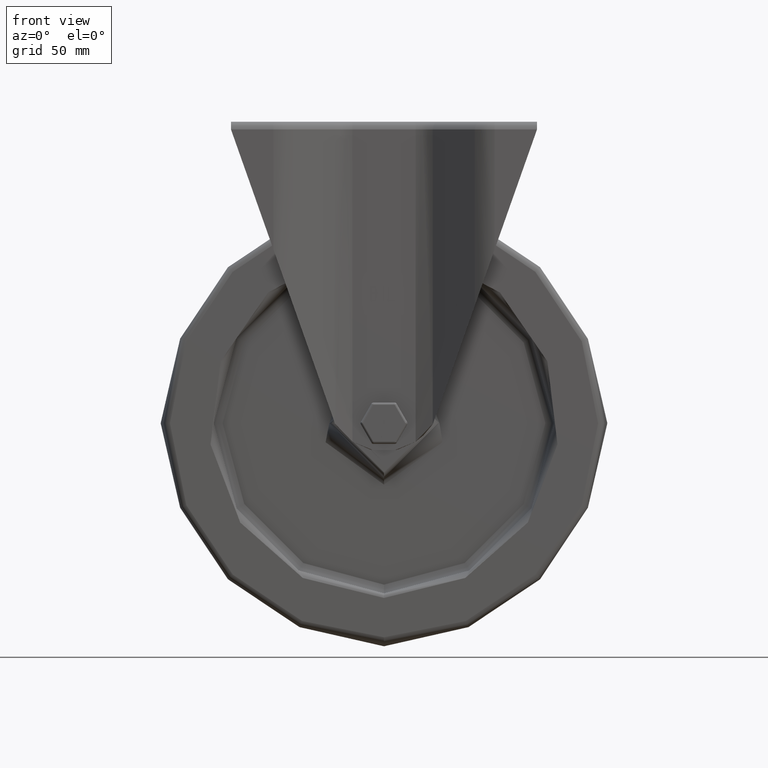
[diagram: clean part render]
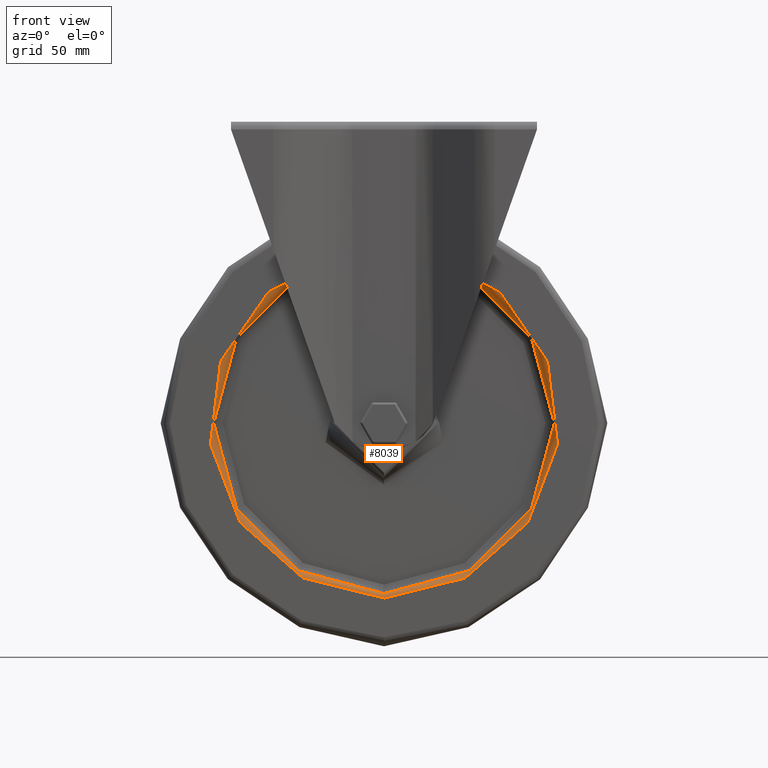
[diagram: same view with one face highlighted and labeled with its STEP entity id]
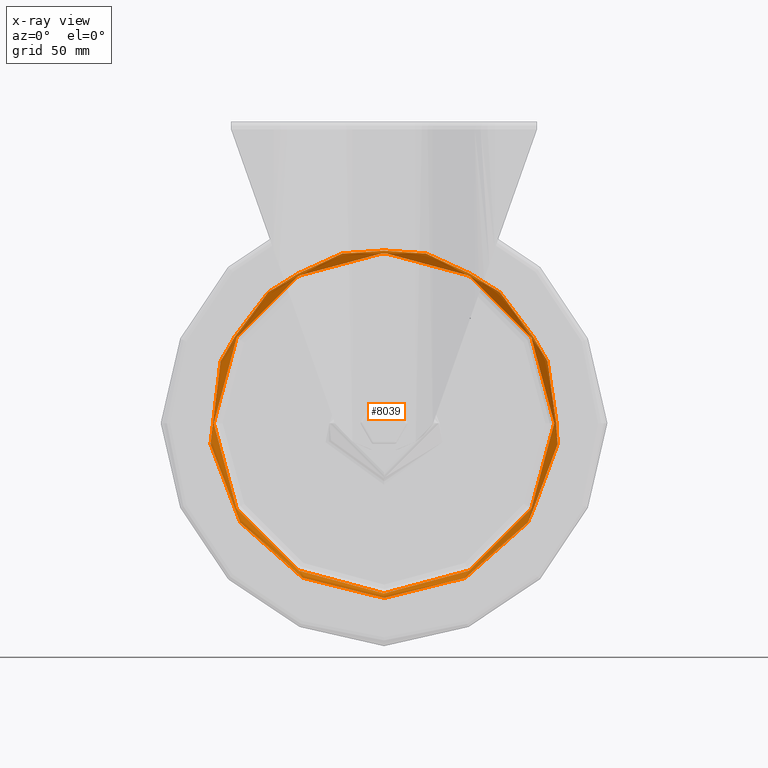
[diagram: x-ray of the same camera — body ghosted, the highlighted face saturated]
A machine part, front view. The second image highlights one B-rep face of the part: STEP entity #8039.
The next image is the same camera in x-ray: the body ghosted, the highlighted face saturated — about 0% of this face is hidden behind the body in this view.
In plain terms, the highlighted toroidal blend (fillet) surface has major radius 78.25 mm and minor (blend) radius 2 mm.
Its self-contained STEP definition (entity closure, byte-faithful):
#519=TOROIDAL_SURFACE('',#8798,78.25,1.99999999999995);
#904=FACE_OUTER_BOUND('',#1402,.T.);
#1402=EDGE_LOOP('',(#6106,#6107,#6108,#6109));
#3131=CIRCLE('',#8799,78.25);
#3132=CIRCLE('',#8800,1.99999999999995);
#3133=CIRCLE('',#8801,76.25);
#3611=VERTEX_POINT('',#12855);
#3612=VERTEX_POINT('',#12857);
#4509=EDGE_CURVE('',#3611,#3611,#3131,.T.);
#4510=EDGE_CURVE('',#3611,#3612,#3132,.T.);
#4511=EDGE_CURVE('',#3612,#3612,#3133,.T.);
#6106=ORIENTED_EDGE('',*,*,#4509,.F.);
#6107=ORIENTED_EDGE('',*,*,#4510,.T.);
#6108=ORIENTED_EDGE('',*,*,#4511,.T.);
#6109=ORIENTED_EDGE('',*,*,#4510,.F.);
#8039=ADVANCED_FACE('',(#904),#519,.T.);
#8798=AXIS2_PLACEMENT_3D('',#12854,#10182,#10183);
#8799=AXIS2_PLACEMENT_3D('',#12856,#10184,#10185);
#8800=AXIS2_PLACEMENT_3D('',#12858,#10186,#10187);
#8801=AXIS2_PLACEMENT_3D('',#12859,#10188,#10189);
#10182=DIRECTION('center_axis',(0.,1.,0.));
#10183=DIRECTION('ref_axis',(0.,0.,1.));
#10184=DIRECTION('center_axis',(0.,1.,0.));
#10185=DIRECTION('ref_axis',(0.,0.,1.));
#10186=DIRECTION('center_axis',(-1.,0.,1.22464679914735E-16));
#10187=DIRECTION('ref_axis',(-1.22464679914735E-16,0.,-1.));
#10188=DIRECTION('center_axis',(0.,1.,0.));
#10189=DIRECTION('ref_axis',(0.,0.,1.));
#12854=CARTESIAN_POINT('Origin',(0.,-22.0000000000001,0.));
#12855=CARTESIAN_POINT('',(9.58286120332803E-15,-24.,-78.25));
#12856=CARTESIAN_POINT('Origin',(0.,-24.,0.));
#12857=CARTESIAN_POINT('',(9.33793184349857E-15,-22.0000000000001,-76.25));
#12858=CARTESIAN_POINT('Origin',(-9.58286120332804E-15,-22.0000000000001,
-78.25));
#12859=CARTESIAN_POINT('Origin',(0.,-22.0000000000001,0.));